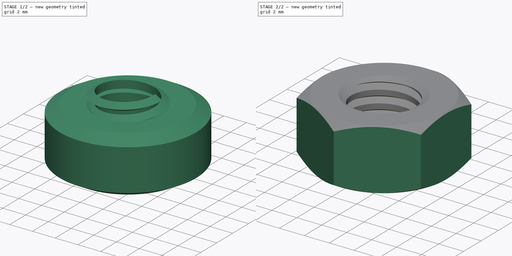
[diagram: build sequence overview — one tinted view per stage of 2, left to right]
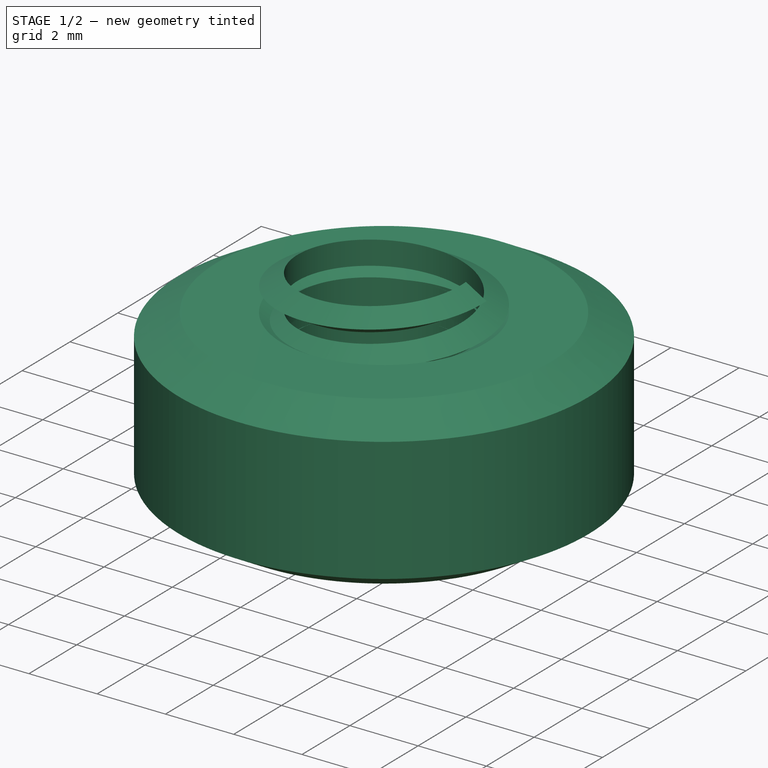
[diagram: stage 1 of 2 — iso view after this stage's code; geometry added in this stage tinted green]
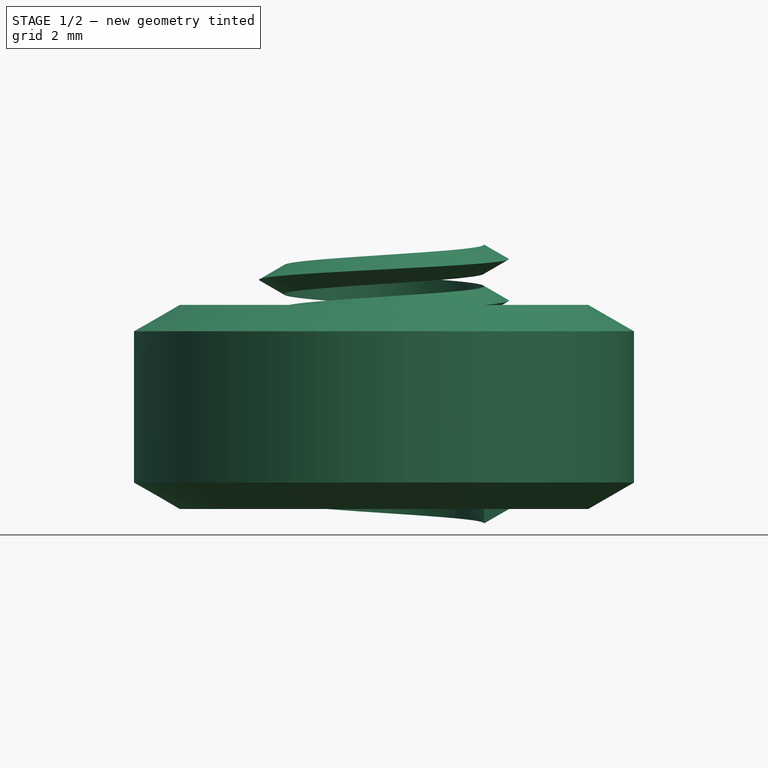
[diagram: stage 1 of 2 — front view after this stage's code; geometry added in this stage tinted green]
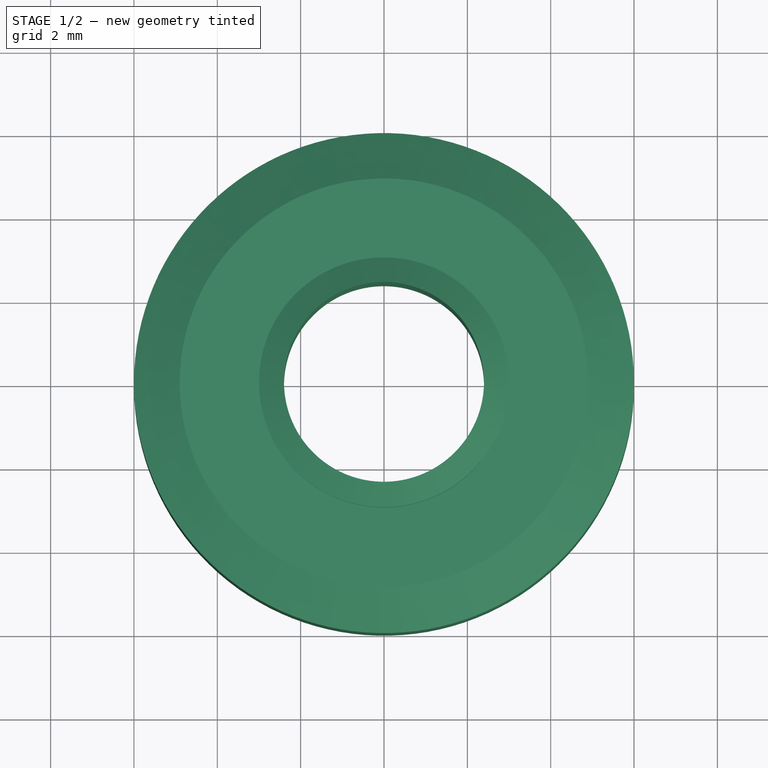
[diagram: stage 1 of 2 — top view after this stage's code; geometry added in this stage tinted green]
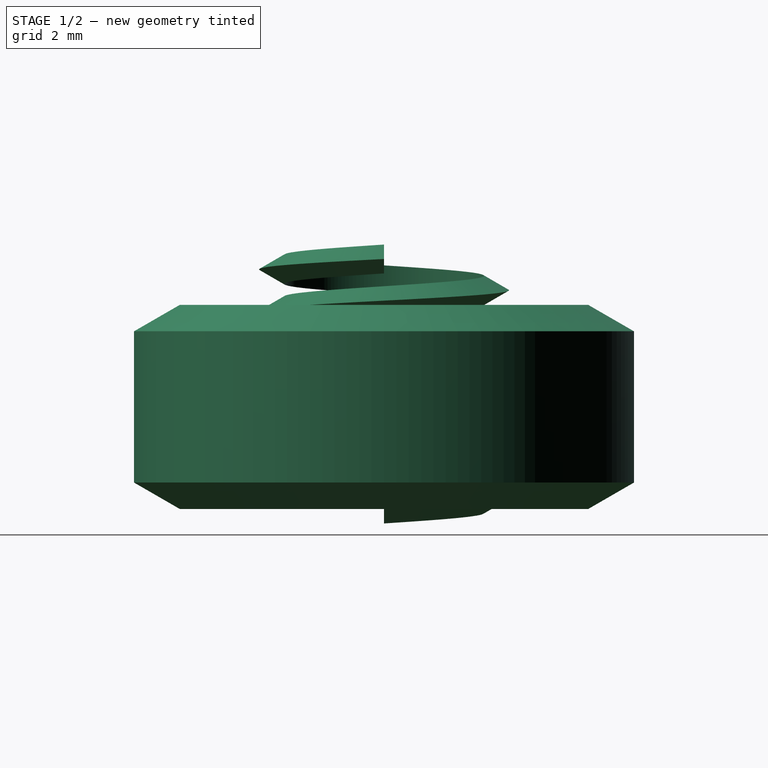
[diagram: stage 1 of 2 — right view after this stage's code; geometry added in this stage tinted green]
FCSTD DOCUMENT  (FreeCAD 0.15R4671 (Git))
Label: screwthing
License: All rights reserved
LicenseURL: http://en.wikipedia.org/wiki/All_rights_reserved
objects: Sketcher::SketchObject×3, PartDesign::Revolution×1, PartDesign::Pocket×1, Part::Helix×1, Part::Sweep×1, Part::Cut×1
note: 10 computed .brp shape members not serialized (recipe doc carries the construction recipe); baked Part::Feature solids carry a one-line shape summary decoded from their .brp

FEATURE [Sketcher::SketchObject] Sketch
  Placement = pos=(0,0,0) rot=(-1,0,0;4.71239rad)
  sketch-geometry (8):
    g0: LineSegment StartX=3 StartY=0 StartZ=0 EndX=2.5 EndY=0.288675 EndZ=0
    g1: LineSegment StartX=2.5 StartY=0.288675 StartZ=0 EndX=2.5 EndY=4.61132 EndZ=0
    g2: LineSegment StartX=2.5 StartY=4.61132 StartZ=0 EndX=3 EndY=4.9 EndZ=0
    g3: LineSegment StartX=3 StartY=4.9 StartZ=0 EndX=4.9 EndY=4.9 EndZ=0
    g4: LineSegment StartX=4.9 StartY=4.9 StartZ=0 EndX=6 EndY=4.26491 EndZ=0
    g5: LineSegment StartX=6 StartY=4.26491 StartZ=0 EndX=6 EndY=0.635085 EndZ=0
    g6: LineSegment StartX=6 StartY=0.635085 StartZ=0 EndX=4.9 EndY=0 EndZ=0
    g7: LineSegment StartX=4.9 StartY=0 StartZ=0 EndX=3 EndY=0 EndZ=0
  constraints (24):
    c: PointOnObject(g0,g-1)
    c: Coincident(g0,g1)
    c: Vertical(g1)
    c: Coincident(g1,g2)
    c: Coincident(g2,g3)
    c: Horizontal(g3)
    c: Coincident(g3,g4)
    c: Coincident(g4,g5)
    c: Vertical(g5)
    c: Coincident(g5,g6)
    c: PointOnObject(g6,g-1)
    c: Coincident(g6,g7)
    c: Coincident(g7,g0)
    c: Equal(g2,g0)
    c: Equal(g4,g6)
    c: Angle(g2,g3) = 2.61799
    c: Angle(g3,g4) = 2.61799
    c: Angle(g6,g7) = 2.61799
    c: Angle(g7,g0) = 2.61799
    c: DistanceX(g-1,g1) = 2.5
    c: DistanceX(g-1,g2) = 3
    c: DistanceX(g-1,g3) = 4.9
    c: DistanceX(g-1,g4) = 6
    c: DistanceY(g3,g6) = -4.9
FEATURE [PartDesign::Revolution] Revolution
  Angle = 360
  Axis = (0,0,1)
  Base = (0,0,0)
  Placement = pos=(0,0,0) rot=(-1,0,0;4.71239rad)
  ReferenceAxis = -> Sketch [V_Axis]
  Reversed = true
  Sketch = -> Sketch
FEATURE [Part::Helix] Helix
  Angle = 0
  Height = 6
  LocalCoord = 0
  Pitch = 1
  Radius = 2.5
  Style = 1
FEATURE [Sketcher::SketchObject] Sketch002
  Placement = pos=(0,0,0) rot=(-1,0,0;4.71239rad)
  sketch-geometry (3):
    g0: LineSegment StartX=3 StartY=0 StartZ=0 EndX=2.4 EndY=0.34641 EndZ=0
    g1: LineSegment StartX=2.4 StartY=0.34641 StartZ=0 EndX=2.4 EndY=-0.34641 EndZ=0
    g2: LineSegment StartX=2.4 StartY=-0.34641 StartZ=0 EndX=3 EndY=0 EndZ=0
  constraints (9):
    c: PointOnObject(g0,g-1)
    c: Coincident(g0,g1)
    c: Vertical(g1)
    c: Coincident(g1,g2)
    c: Coincident(g2,g0)
    c: Equal(g0,g2)
    c: Angle(g0,g2) = 1.0472
    c: DistanceX(g-1,g1) = 2.4
    c: DistanceX(g-1,g0) = 3
FEATURE [Part::Sweep] Sweep
  Frenet = true
  Sections = -> [Sketch002]
  Solid = true
  Spine = -> Helix [Edge1,Edge2,Edge3,Edge4,Edge5,Edge6]
  Transition = 1
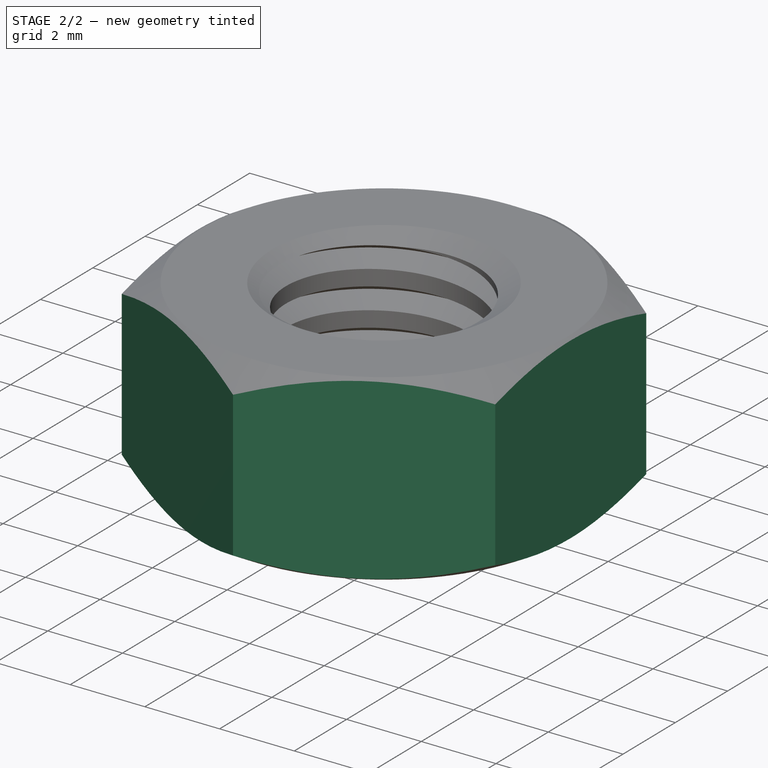
[diagram: stage 2 of 2 — iso view after this stage's code; geometry added in this stage tinted green]
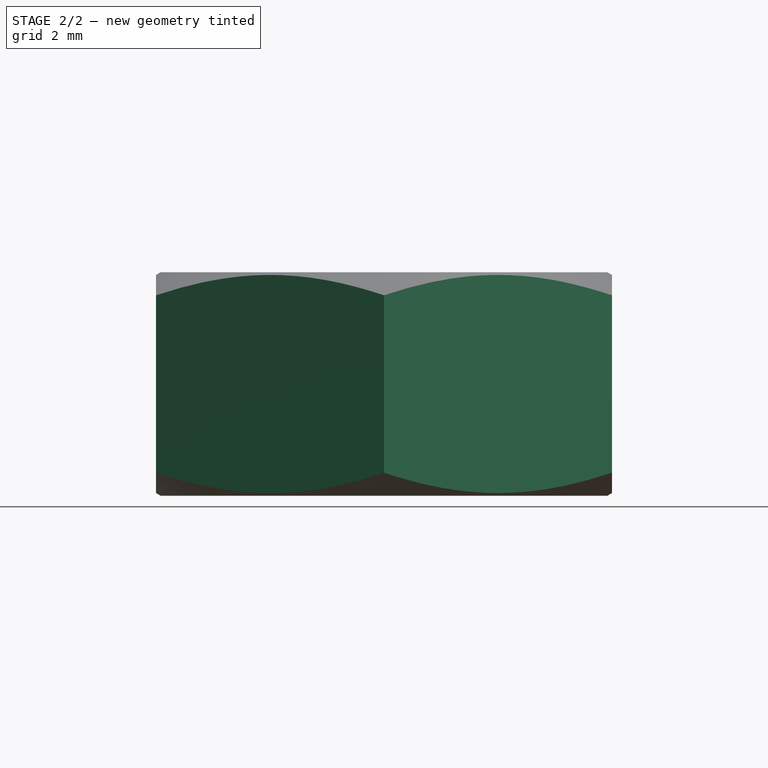
[diagram: stage 2 of 2 — front view after this stage's code; geometry added in this stage tinted green]
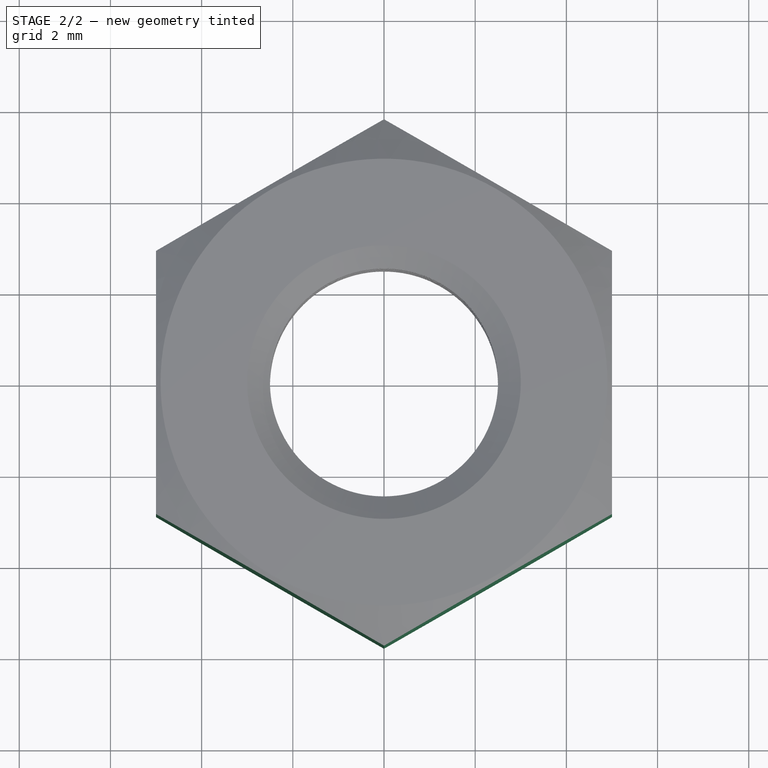
[diagram: stage 2 of 2 — top view after this stage's code; geometry added in this stage tinted green]
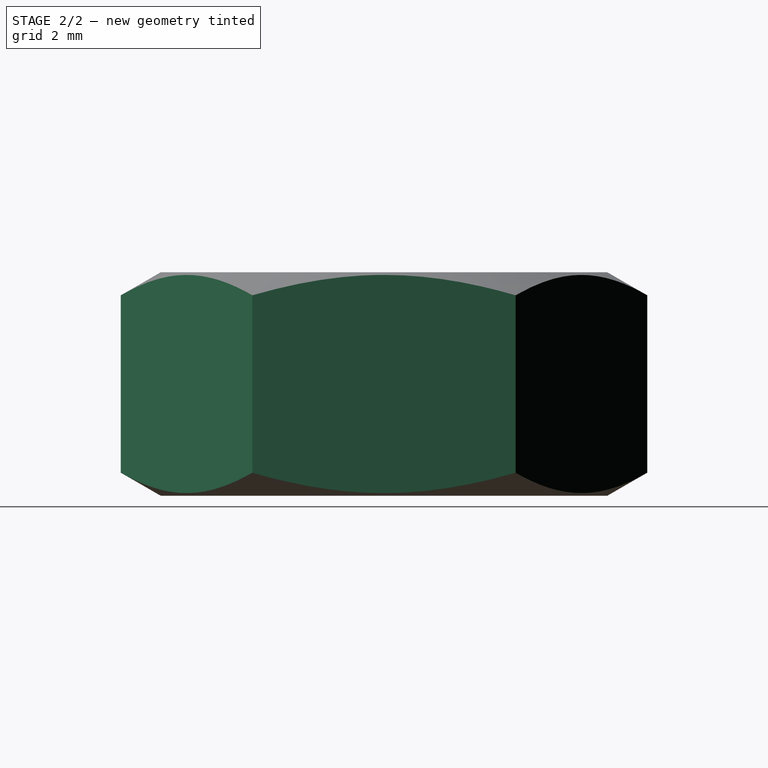
[diagram: stage 2 of 2 — right view after this stage's code; geometry added in this stage tinted green]
FEATURE [Sketcher::SketchObject] Sketch001
  Placement = pos=(0,0,4.9) rot=(0,0,1;3.14159rad)
  Support = -> Revolution [Face4]
  sketch-geometry (8):
    g0: LineSegment StartX=0 StartY=5.7735 StartZ=0 EndX=-5 EndY=2.88675 EndZ=0
    g1: LineSegment StartX=-5 StartY=2.88675 StartZ=0 EndX=-5 EndY=-2.88675 EndZ=0
    g2: LineSegment StartX=-5 StartY=-2.88675 StartZ=0 EndX=-1e-12 EndY=-5.7735 EndZ=0
    g3: LineSegment StartX=-1e-12 StartY=-5.7735 StartZ=0 EndX=5 EndY=-2.88675 EndZ=0
    g4: LineSegment StartX=5 StartY=-2.88675 StartZ=0 EndX=5 EndY=2.88675 EndZ=0
    g5: LineSegment StartX=5 StartY=2.88675 StartZ=0 EndX=0 EndY=5.7735 EndZ=0
    g6: Circle [constr] CenterX=-2e-12 CenterY=0 CenterZ=0 NormalX=0 NormalY=0 NormalZ=1 Radius=5.7735
    g7: Circle CenterX=0 CenterY=0 CenterZ=0 NormalX=0 NormalY=0 NormalZ=1 Radius=7
  constraints (20):
    c: Coincident(g0,g1)
    c: Coincident(g1,g2)
    c: Coincident(g2,g3)
    c: Coincident(g3,g4)
    c: Coincident(g4,g5)
    c: Coincident(g5,g0)
    c: Equal(g0, g1-g5) x5
    c: PointOnObject(g0,g6)
    c: PointOnObject(g1,g6)
    c: PointOnObject(g2,g6)
    c: PointOnObject(g3,g6)
    c: PointOnObject(g4,g6)
    c: PointOnObject(g5,g6)
    c: Coincident(g3,g-1)
    c: PointOnObject(g0,g-2)
    c: Vertical(g4)
    c: Coincident(g-1,g6)
    c: DistanceX(g0,g4) = 10
    c: Coincident(g7,g-1)
    c: Radius(g7) = 7
FEATURE [PartDesign::Pocket] Pocket
  Length = 5
  Placement = pos=(0,0,0) rot=(-1,0,0;4.71239rad)
  Sketch = -> Sketch001
  Type = 1
FEATURE [Part::Cut] Cut
  Base = -> Pocket
  Tool = -> Sweep
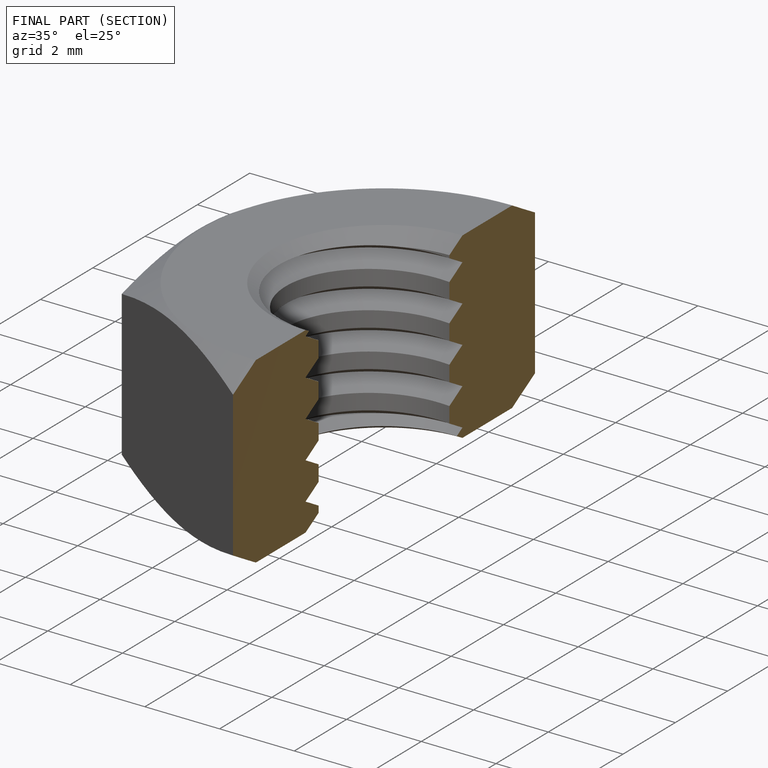
[diagram: finished part — half-section view (interior)]
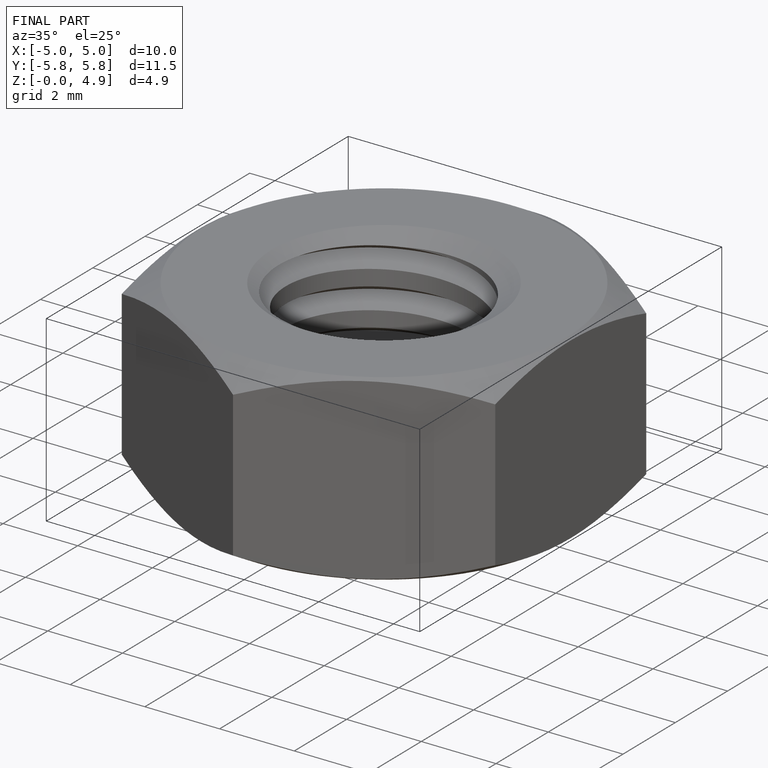
[diagram: finished part — iso view with bounding-box wireframe]
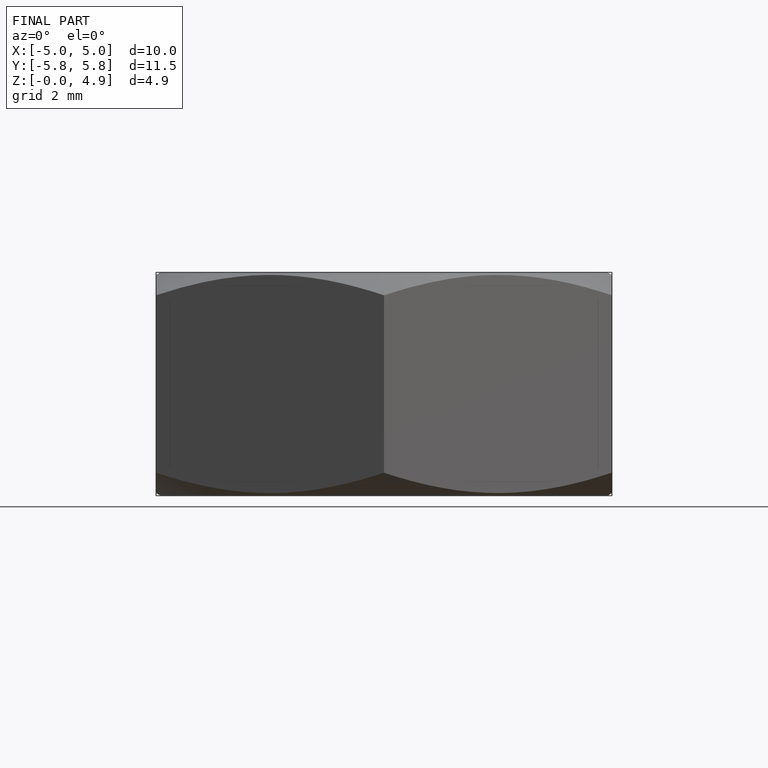
[diagram: finished part — front view with bounding-box wireframe]
